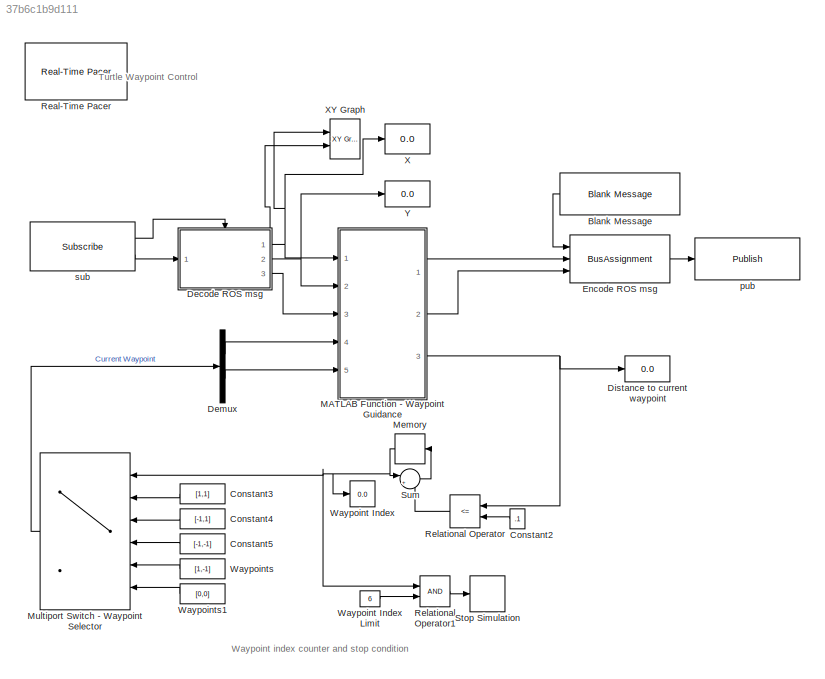
MODEL slx_37b6c1b9d111
KIND model
CONFIG AbsTol = auto
CONFIG EnableMultiTasking = on
CONFIG FixedStep = 0.2
CONFIG MaxStep = auto
CONFIG MinStep = auto
CONFIG RelTol = 1e-3
CONFIG SampleTimeConstraint = Unconstrained
CONFIG Solver = FixedStepDiscrete
CONFIG SolverName = FixedStepDiscrete
CONFIG StartTime = 0.0
CONFIG StopTime = inf
BLOCK [Reference] Blank Message  REF=robotlib/Blank Message
  Ports = [0, 1]
  SourceBlock = robotlib/Blank Message
  SourceLibraryInfo = This block requires Robotics System Toolbox
  SourceProductBaseCode = RO
  SourceProductName = Robotics System Toolbox
  SourceType = ROS Blank Message
BLOCK [Constant] Constant2
  Value = .1
BLOCK [Constant] Constant3
  Value = [1,1]
BLOCK [Constant] Constant4
  Value = [-1,1]
BLOCK [Constant] Constant5
  Value = [-1,-1]
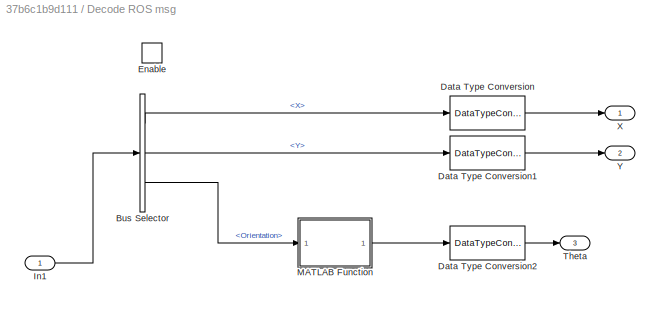
BLOCK [SubSystem] Decode ROS msg
  Ports = [1, 3, 1]
  RequestExecContextInheritance = off
  Variant = off
BLOCK [BusSelector] Decode ROS msg/Bus Selector
  DialogController = Simulink.DDGSource_BusSelector
  OutputAsBus = off
  OutputSignals = Pose.Pose.Position.X,Pose.Pose.Position.Y,Pose.Pose.Orientation
  Ports = [1, 3]
BLOCK [DataTypeConversion] Decode ROS msg/Data Type Conversion
  OutDataTypeStr = double
  RndMeth = Floor
  SaturateOnIntegerOverflow = off
BLOCK [DataTypeConversion] Decode ROS msg/Data Type Conversion1
  OutDataTypeStr = double
  RndMeth = Floor
  SaturateOnIntegerOverflow = off
BLOCK [DataTypeConversion] Decode ROS msg/Data Type Conversion2
  OutDataTypeStr = double
  RndMeth = Floor
  SaturateOnIntegerOverflow = off
BLOCK [EnablePort] Decode ROS msg/Enable
  Ports = []
BLOCK [Inport] Decode ROS msg/In1
  IconDisplay = Port number
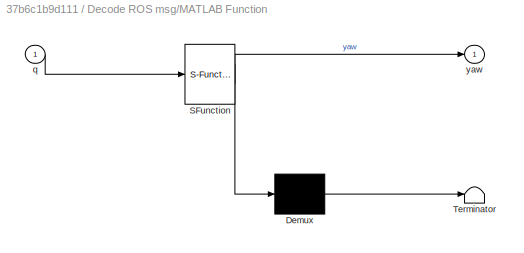
BLOCK [SubSystem] Decode ROS msg/MATLAB Function
  ErrorFcn = Stateflow.Translate.translate
  PermitHierarchicalResolution = ExplicitOnly
  Ports = [1, 1]
  RequestExecContextInheritance = off
  SFBlockType = MATLAB Function
  TreatAsAtomicUnit = on
  Variant = off
BLOCK [Demux] Decode ROS msg/MATLAB Function/ Demux 
  Outputs = 1
  Ports = [1, 1]
BLOCK [S-Function] Decode ROS msg/MATLAB Function/ SFunction 
  EnableBusSupport = off
  FunctionName = sf_sfun
  PortCounts = [1 2]
  Ports = [1, 2]
  SFcnIsStateOwnerBlock = off
  SFunctionDeploymentMode = off
  Tag = Stateflow S-Function turtlebot_waypoint 1
BLOCK [Terminator] Decode ROS msg/MATLAB Function/ Terminator 
BLOCK [Inport] Decode ROS msg/MATLAB Function/q
  IconDisplay = Port number
BLOCK [Outport] Decode ROS msg/MATLAB Function/yaw
  IconDisplay = Port number
BLOCK [Outport] Decode ROS msg/Theta
  IconDisplay = Port number
  Port = 3
BLOCK [Outport] Decode ROS msg/X
  IconDisplay = Port number
BLOCK [Outport] Decode ROS msg/Y
  IconDisplay = Port number
  Port = 2
BLOCK [Demux] Demux
  DisplayOption = bar
  Outputs = 2
  Ports = [1, 2]
BLOCK [Display] Distance to current waypoint
  Decimation = 1
  Ports = [1]
BLOCK [BusAssignment] Encode ROS msg
  AssignedSignals = Linear.X,Angular.Z
  Ports = [3, 1]
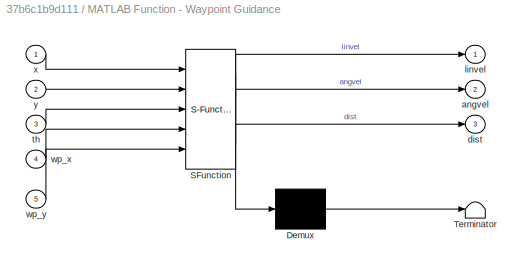
BLOCK [SubSystem] MATLAB Function - Waypoint Guidance
  ErrorFcn = Stateflow.Translate.translate
  PermitHierarchicalResolution = ExplicitOnly
  Ports = [5, 3]
  RequestExecContextInheritance = off
  SFBlockType = MATLAB Function
  TreatAsAtomicUnit = on
  Variant = off
BLOCK [Demux] MATLAB Function - Waypoint Guidance/ Demux 
  Outputs = 1
  Ports = [1, 1]
BLOCK [S-Function] MATLAB Function - Waypoint Guidance/ SFunction 
  EnableBusSupport = on
  FunctionName = sf_sfun
  PortCounts = [5 4]
  Ports = [5, 4]
  SFcnIsStateOwnerBlock = off
  SFunctionDeploymentMode = off
  Tag = Stateflow S-Function turtlebot_waypoint 2
BLOCK [Terminator] MATLAB Function - Waypoint Guidance/ Terminator 
BLOCK [Outport] MATLAB Function - Waypoint Guidance/angvel
  IconDisplay = Port number
  Port = 2
BLOCK [Outport] MATLAB Function - Waypoint Guidance/dist
  IconDisplay = Port number
  Port = 3
BLOCK [Outport] MATLAB Function - Waypoint Guidance/linvel
  IconDisplay = Port number
BLOCK [Inport] MATLAB Function - Waypoint Guidance/th
  IconDisplay = Port number
  Port = 3
BLOCK [Inport] MATLAB Function - Waypoint Guidance/wp_x
  IconDisplay = Port number
  Port = 4
BLOCK [Inport] MATLAB Function - Waypoint Guidance/wp_y
  IconDisplay = Port number
  Port = 5
BLOCK [Inport] MATLAB Function - Waypoint Guidance/x
  IconDisplay = Port number
BLOCK [Inport] MATLAB Function - Waypoint Guidance/y
  IconDisplay = Port number
  Port = 2
BLOCK [Memory] Memory
  InitialCondition = 1
BLOCK [MultiPortSwitch] Multiport Switch - Waypoint Selector
  DiagnosticForDefault = Warning
  InputSameDT = off
  Inputs = 5
  Ports = [6, 1]
  SaturateOnIntegerOverflow = off
BLOCK [Reference] Real-Time Pacer  REF=realtime_pacer_lib/Real-Time Pacer
  Ports = []
  SourceBlock = realtime_pacer_lib/Real-Time Pacer
  SourceType = RealTime_Pacer
BLOCK [RelationalOperator] Relational Operator
  InputSameDT = off
  Operator = <=
  OutDataTypeStr = boolean
  Ports = [2, 1]
  RndMeth = Simplest
BLOCK [RelationalOperator] Relational Operator1
  InputSameDT = off
  OutDataTypeStr = boolean
  Ports = [2, 1]
  RndMeth = Simplest
BLOCK [Stop] Stop Simulation
BLOCK [Sum] Sum
  IconShape = round
  InputSameDT = off
  Inputs = |++
  OutDataTypeStr = Inherit: Inherit via internal rule
  Ports = [2, 1]
  SaturateOnIntegerOverflow = off
BLOCK [Display] Waypoint Index
  Decimation = 1
  Ports = [1]
BLOCK [Constant] Waypoint Index Limit
  Value = 6
BLOCK [Constant] Waypoints
  Value = [1,-1]
BLOCK [Constant] Waypoints1
  Value = [0,0]
BLOCK [Display] X
  Decimation = 1
  Ports = [1]
BLOCK [Reference] XY Graph  REF=simulink/Sinks/XY Graph
  Ports = [2]
  SourceBlock = simulink/Sinks/XY Graph
  SourceProductBaseCode = SL
  SourceProductName = Simulink
  SourceType = XY scope.
BLOCK [Display] Y
  Decimation = 1
  Ports = [1]
BLOCK [Reference] pub  REF=robotlib/Publish
  Ports = [1]
  SourceBlock = robotlib/Publish
  SourceLibraryInfo = This block requires Robotics System Toolbox
  SourceProductBaseCode = RO
  SourceProductName = Robotics System Toolbox
  SourceType = ROS Publish
BLOCK [Reference] sub   REF=robotlib/Subscribe
  Ports = [0, 2]
  SourceBlock = robotlib/Subscribe
  SourceLibraryInfo = This block requires Robotics System Toolbox
  SourceProductBaseCode = RO
  SourceProductName = Robotics System Toolbox
  SourceType = ROS Subscribe
ANNOTATION (root): Turtle Waypoint Control
ANNOTATION (root): Waypoint index counter and stop condition
LINE Blank Message:1 -> Encode ROS msg:1
LINE Constant2:1 -> Relational Operator:2
LINE Constant3:1 -> Multiport Switch - Waypoint Selector:2
LINE Constant4:1 -> Multiport Switch - Waypoint Selector:3
LINE Constant5:1 -> Multiport Switch - Waypoint Selector:4
LINE Decode ROS msg/Bus Selector:1 -> Decode ROS msg/Data Type Conversion:1
LINE Decode ROS msg/Bus Selector:2 -> Decode ROS msg/Data Type Conversion1:1
LINE Decode ROS msg/Bus Selector:3 -> Decode ROS msg/MATLAB Function:1
LINE Decode ROS msg/Data Type Conversion1:1 -> Decode ROS msg/Y:1
LINE Decode ROS msg/Data Type Conversion2:1 -> Decode ROS msg/Theta:1
LINE Decode ROS msg/Data Type Conversion:1 -> Decode ROS msg/X:1
LINE Decode ROS msg/In1:1 -> Decode ROS msg/Bus Selector:1
LINE Decode ROS msg/MATLAB Function:1 -> Decode ROS msg/Data Type Conversion2:1
NET Decode ROS msg:1 -> MATLAB Function - Waypoint Guidance:1, X:1, XY Graph:1
NET Decode ROS msg:2 -> MATLAB Function - Waypoint Guidance:2, XY Graph:2, Y:1
LINE Decode ROS msg:3 -> MATLAB Function - Waypoint Guidance:3
LINE Demux:1 -> MATLAB Function - Waypoint Guidance:4
LINE Demux:2 -> MATLAB Function - Waypoint Guidance:5
LINE Encode ROS msg:1 -> pub:1
LINE MATLAB Function - Waypoint Guidance:1 -> Encode ROS msg:2
LINE MATLAB Function - Waypoint Guidance:2 -> Encode ROS msg:3
NET MATLAB Function - Waypoint Guidance:3 -> Distance to current waypoint:1, Relational Operator:1
NET Memory:1 -> Multiport Switch - Waypoint Selector:1, Relational Operator1:1, Sum:1, Waypoint Index:1
LINE Multiport Switch - Waypoint Selector:1 -> Demux:1
LINE Relational Operator1:1 -> Stop Simulation:1
LINE Relational Operator:1 -> Sum:2
LINE Sum:1 -> Memory:1
LINE Waypoint Index Limit:1 -> Relational Operator1:2
LINE Waypoints1:1 -> Multiport Switch - Waypoint Selector:6
LINE Waypoints:1 -> Multiport Switch - Waypoint Selector:5
LINE sub :1 -> Decode ROS msg:enable
LINE sub :2 -> Decode ROS msg:1
note: NET lines group one-source signal fan-out (src -> all destinations, sorted); 1:1 wires keep LINE
CHART Decode ROS msg/MATLAB Function states=1 transitions=1
  STATE_LABEL 'eML_blk_kernel()'
  STATE_LABEL 'SCRIPT:\nfunction yaw = fcn(q)\n\nangles = quat2eul([q.W q.X q.Y q.Z]);\nyaw = angles(1);\n\n\n\n'
CHART MATLAB Function - Waypoint Guidance states=1 transitions=1
  STATE_LABEL 'eML_blk_kernel()'
  STATE_LABEL 'SCRIPT:\nfunction [linvel,angvel,dist] = wpt_fcn(x,y,th,wp_x,wp_y)\n% Function to implement waypoint guidance\n% Inputs:\n%  - x: Current X position\n%  - y: Current Y position\n%  - th: Current theta position\n%  - wp_x: Current waypoint goals, X\n%  - wp_y: Current waypoint goals, X\n% Outputs:\n%  - dist: Distance from current position to current waypoint goal\n%  - angvel: Desired angular velocity [rad/s...<+602ch>'
